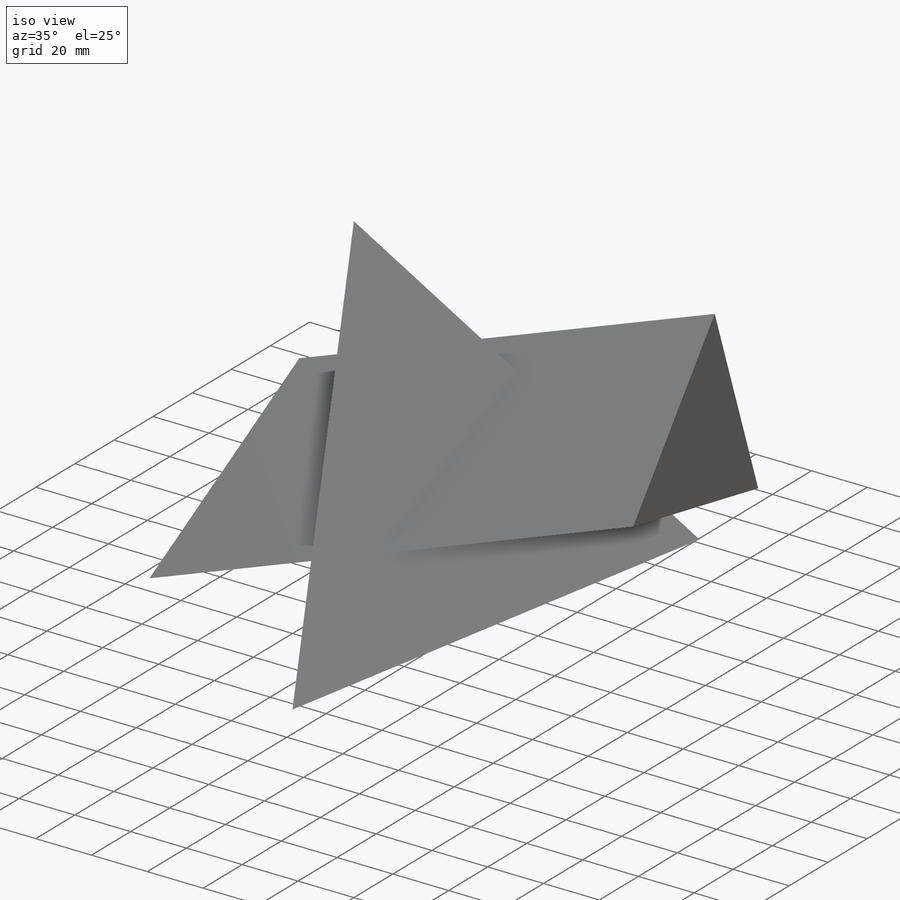
[diagram: iso view]
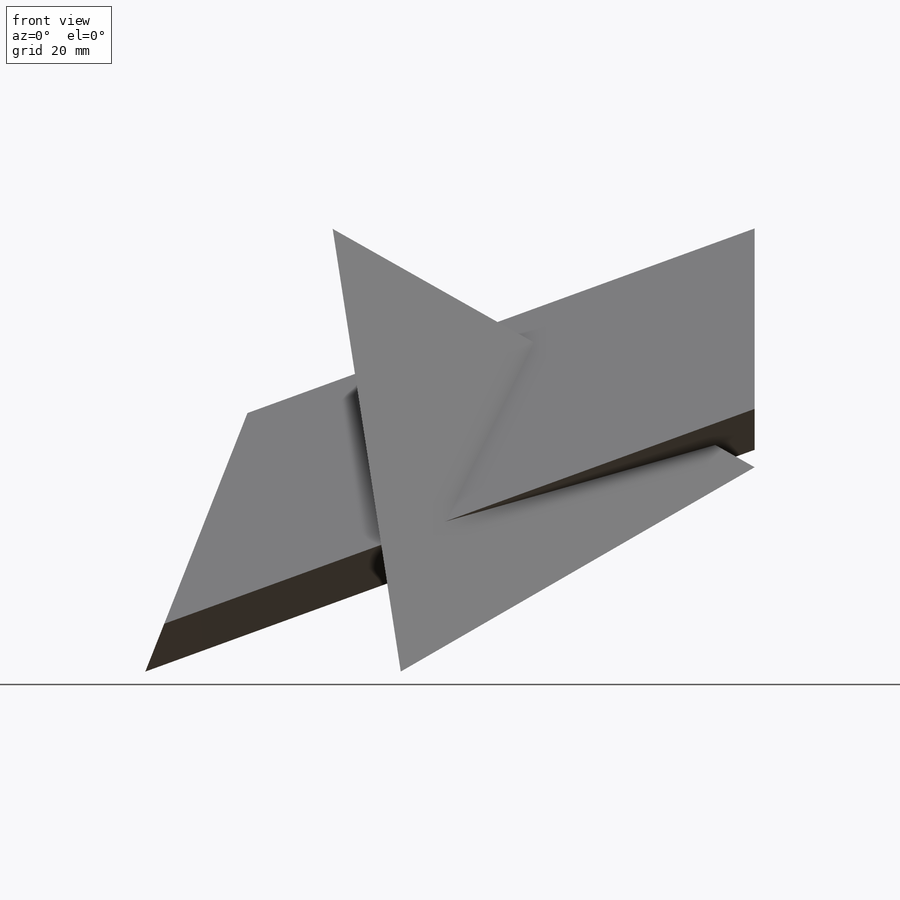
[diagram: front view]
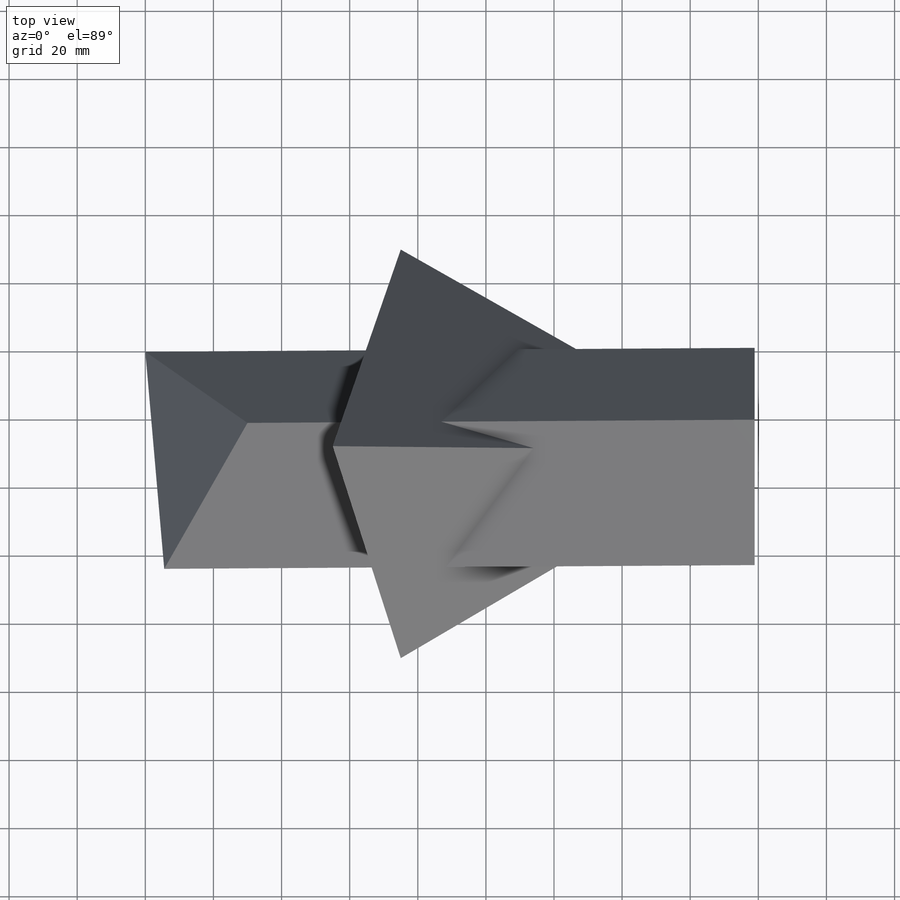
[diagram: top view]
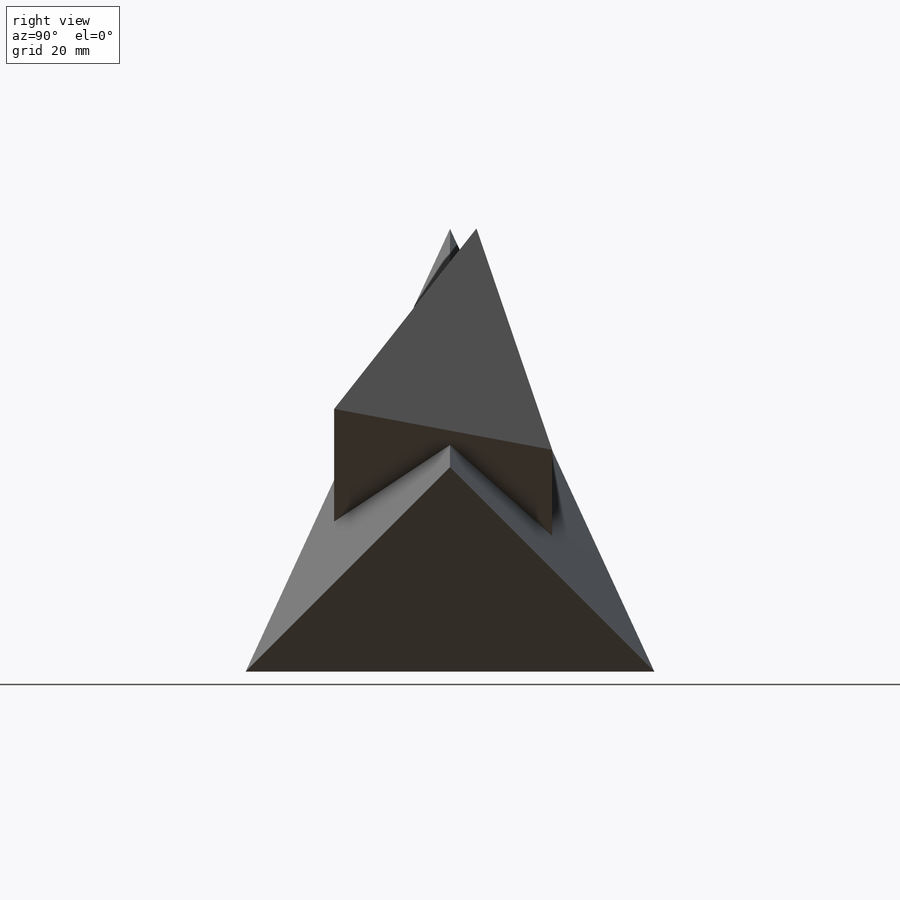
[diagram: right view]
SOLIDWORKS PART (.sldprt)
format: sldprt  version: not decoded by parser v0  size: 217,600 bytes
history: native  units: mm
features: sketch x8, plane x5, material x1, sweep x1, cut_extrude x1 (+10 scaffold rows collapsed)
feature tree (26):
  scaffold x10  (default folders/planes/origin — collapsed)
  material  "Material <not specified>"
  plane  "VP"
  plane  "HP"
  sketch  "Edge of pyramid on HP"  dims[D1=75.0mm D2=30.0mm D3=120.0mm]
  plane  "Mid-plane on pyramid"  Offset=30mm
  sketch  "triangle"  dims[D1=130.0mm D2=20.0mm]
  sketch  "location of triangle points"  dims[c1.D1=~85.866288mm c2.D1=30.0deg c2.D2=60.0mm]
  plane  "Base of pyramid"
  sketch  "point"
  sketch  "Projection of triangle"  dims[c1.D1=~330.304014mm c2.D1=20.0deg c2.D2=65.0mm c2.D3=65.0mm c3.D3=30.0deg c4.D3=65.0mm c5.D3=30.0deg c6.D3=~62.954325mm c7.D3=30.0deg c7.D4=30.0mm c7.D5=~22.231309mm c7.D6=~41.781195mm c8.D5=~22.231309mm]
  plane  "End plane RHS"
  sketch  "Sketch10"  dims[D1=~22.231309mm D2=~41.781195mm]
  sketch  "Sketch11"  dims[D1=~7.491525mm]
  sweep  "Triangular prism"
  sketch  "Sketch8"  dims[D1=30.0mm]
  cut_extrude  "Cut on LHS of prism"  [1 undecoded]
decode coverage: 7 of 10 modeling features carry decoded parameters
note: ~ marks probable driven/reference dimensions
note: 1 parameter value undecoded
note: suppression state not decoded; provenance and decode notes live in map.json
